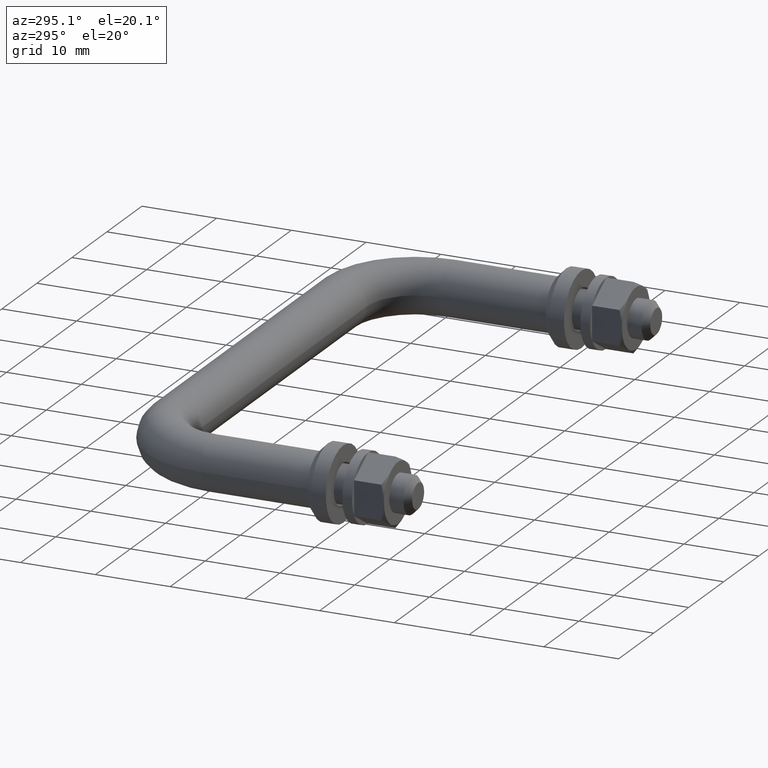
[diagram: clean part render]
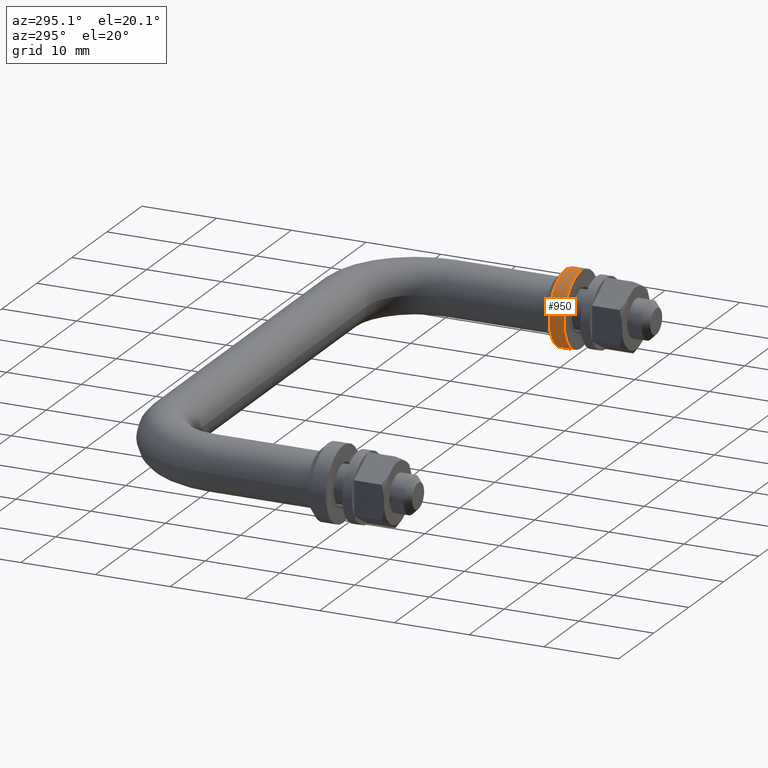
[diagram: same view with one face highlighted and labeled with its STEP entity id]
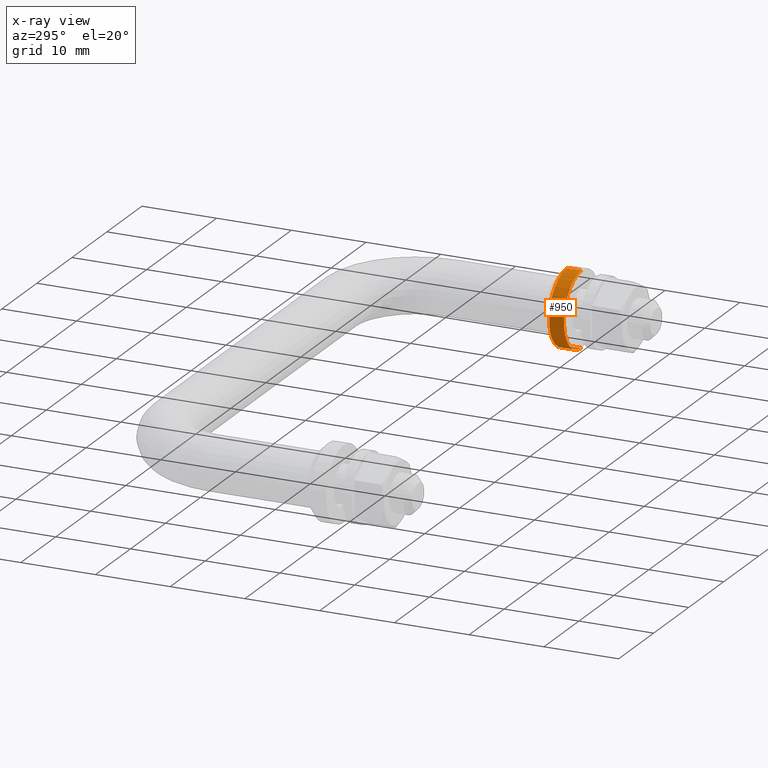
[diagram: x-ray of the same camera — body ghosted, the highlighted face saturated]
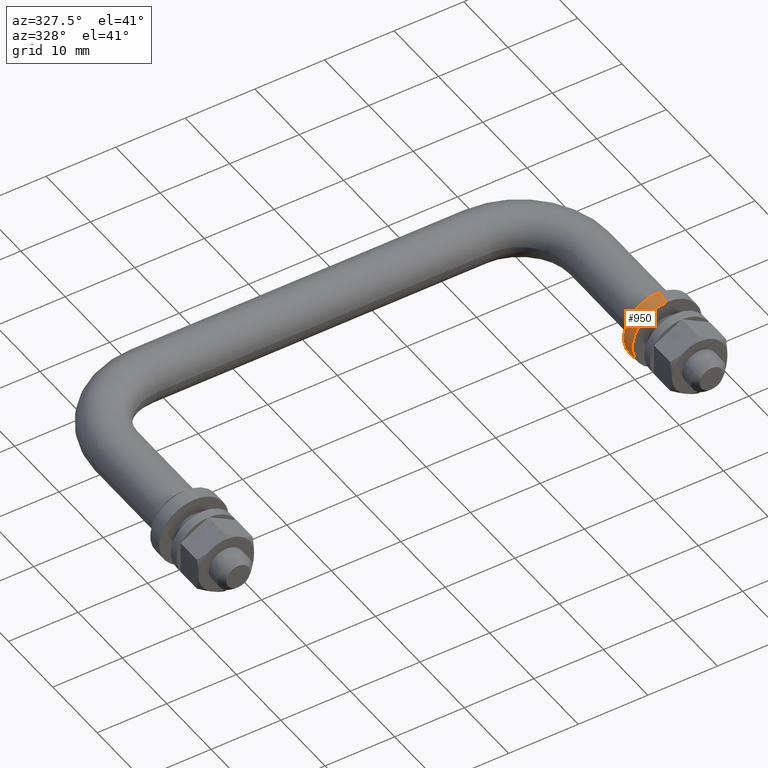
[diagram: same view with one face highlighted and labeled with its STEP entity id]
A machine part, auxiliary view. The second image highlights one B-rep face of the part: STEP entity #950.
The next image is the same camera in x-ray: the body ghosted, the highlighted face saturated — about 0% of this face is hidden behind the body in this view.
A second angle (auxiliary view) of the same face is appended — the face is thin or edge-on in the first view.
In plain terms, the highlighted cylindrical surface (partial cylindrical patch) has radius 5 mm, axis along (0, 1, 0).
Its self-contained STEP definition (entity closure, byte-faithful):
#57 = VERTEX_POINT ( 'NONE', #335 ) ;
#75 = AXIS2_PLACEMENT_3D ( 'NONE', #458, #1474, #1602 ) ;
#89 = LINE ( 'NONE', #1472, #389 ) ;
#185 = DIRECTION ( 'NONE',  ( 0.0000000000000000000, -1.000000000000000000, 0.0000000000000000000 ) ) ;
#335 = CARTESIAN_POINT ( 'NONE',  ( 4.898425415289510000E-016, -1.000000000000000000, -5.000000000000000000 ) ) ;
#339 = DIRECTION ( 'NONE',  ( 0.0000000000000000000, -1.000000000000000000, 0.0000000000000000000 ) ) ;
#345 = DIRECTION ( 'NONE',  ( 0.0000000000000000000, -1.000000000000000000, 0.0000000000000000000 ) ) ;
#376 = VERTEX_POINT ( 'NONE', #562 ) ;
#389 = VECTOR ( 'NONE', #339, 1000.000000000000000 ) ;
#429 = ORIENTED_EDGE ( 'NONE', *, *, #982, .F. ) ;
#456 = EDGE_CURVE ( 'NONE', #933, #1005, #1097, .T. ) ;
#458 = CARTESIAN_POINT ( 'NONE',  ( 4.898425415289510000E-016, 1.000000000000000000, 0.0000000000000000000 ) ) ;
#562 = CARTESIAN_POINT ( 'NONE',  ( 1.102165941102627600E-015, -1.000000000000000000, 5.000000000000000000 ) ) ;
#606 = CIRCLE ( 'NONE', #1289, 5.000000000000000000 ) ;
#610 = CARTESIAN_POINT ( 'NONE',  ( 4.898425415289510000E-016, 0.0000000000000000000, -5.000000000000000000 ) ) ;
#691 = CARTESIAN_POINT ( 'NONE',  ( 1.102165941102627600E-015, 1.000000000000000000, 5.000000000000000000 ) ) ;
#842 = DIRECTION ( 'NONE',  ( 0.0000000000000000000, 0.0000000000000000000, -1.000000000000000000 ) ) ;
#933 = VERTEX_POINT ( 'NONE', #1236 ) ;
#950 = ADVANCED_FACE ( 'NONE', ( #1516 ), #1060, .T. ) ;
#982 = EDGE_CURVE ( 'NONE', #57, #376, #606, .T. ) ;
#1005 = VERTEX_POINT ( 'NONE', #691 ) ;
#1007 = AXIS2_PLACEMENT_3D ( 'NONE', #1482, #185, #842 ) ;
#1034 = LINE ( 'NONE', #610, #1365 ) ;
#1060 = CYLINDRICAL_SURFACE ( 'NONE', #1007, 5.000000000000000000 ) ;
#1071 = CARTESIAN_POINT ( 'NONE',  ( 4.898425415289510000E-016, -1.000000000000000000, 0.0000000000000000000 ) ) ;
#1097 = CIRCLE ( 'NONE', #75, 5.000000000000000000 ) ;
#1148 = EDGE_CURVE ( 'NONE', #1005, #376, #89, .T. ) ;
#1236 = CARTESIAN_POINT ( 'NONE',  ( 4.898425415289510000E-016, 1.000000000000000000, -5.000000000000000000 ) ) ;
#1272 = EDGE_CURVE ( 'NONE', #933, #57, #1034, .T. ) ;
#1283 = DIRECTION ( 'NONE',  ( 0.0000000000000000000, -1.000000000000000000, 0.0000000000000000000 ) ) ;
#1289 = AXIS2_PLACEMENT_3D ( 'NONE', #1071, #1283, #1583 ) ;
#1365 = VECTOR ( 'NONE', #345, 1000.000000000000000 ) ;
#1446 = ORIENTED_EDGE ( 'NONE', *, *, #456, .T. ) ;
#1472 = CARTESIAN_POINT ( 'NONE',  ( 1.102165941102627600E-015, 0.0000000000000000000, 5.000000000000000000 ) ) ;
#1474 = DIRECTION ( 'NONE',  ( 0.0000000000000000000, -1.000000000000000000, 0.0000000000000000000 ) ) ;
#1482 = CARTESIAN_POINT ( 'NONE',  ( 4.898425415289510000E-016, 0.0000000000000000000, 0.0000000000000000000 ) ) ;
#1516 = FACE_OUTER_BOUND ( 'NONE', #1660, .T. ) ;
#1583 = DIRECTION ( 'NONE',  ( 0.0000000000000000000, 0.0000000000000000000, -1.000000000000000000 ) ) ;
#1602 = DIRECTION ( 'NONE',  ( 0.0000000000000000000, 0.0000000000000000000, -1.000000000000000000 ) ) ;
#1607 = ORIENTED_EDGE ( 'NONE', *, *, #1272, .F. ) ;
#1660 = EDGE_LOOP ( 'NONE', ( #1446, #1719, #429, #1607 ) ) ;
#1719 = ORIENTED_EDGE ( 'NONE', *, *, #1148, .T. ) ;